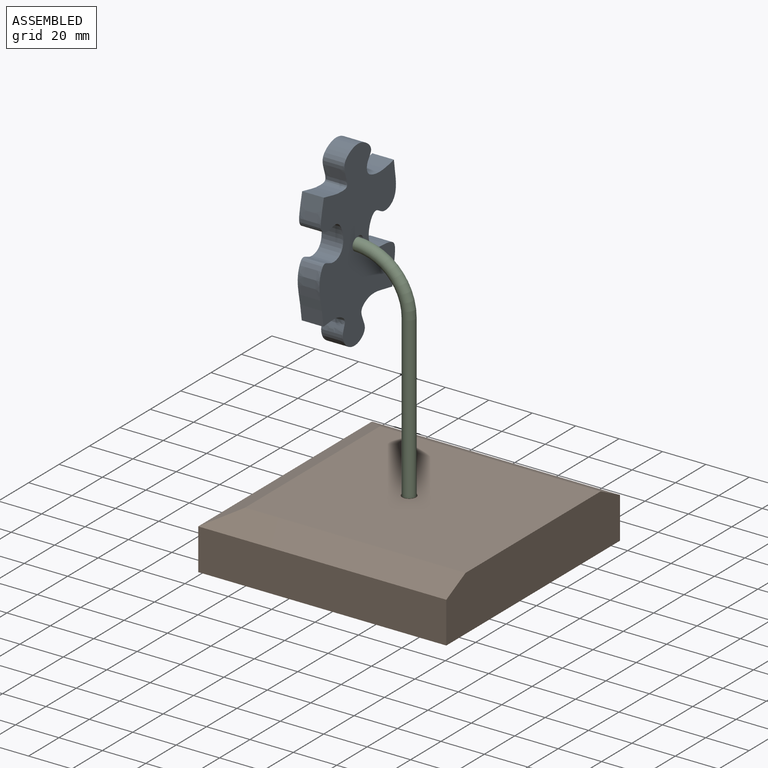
[diagram: assembled view]
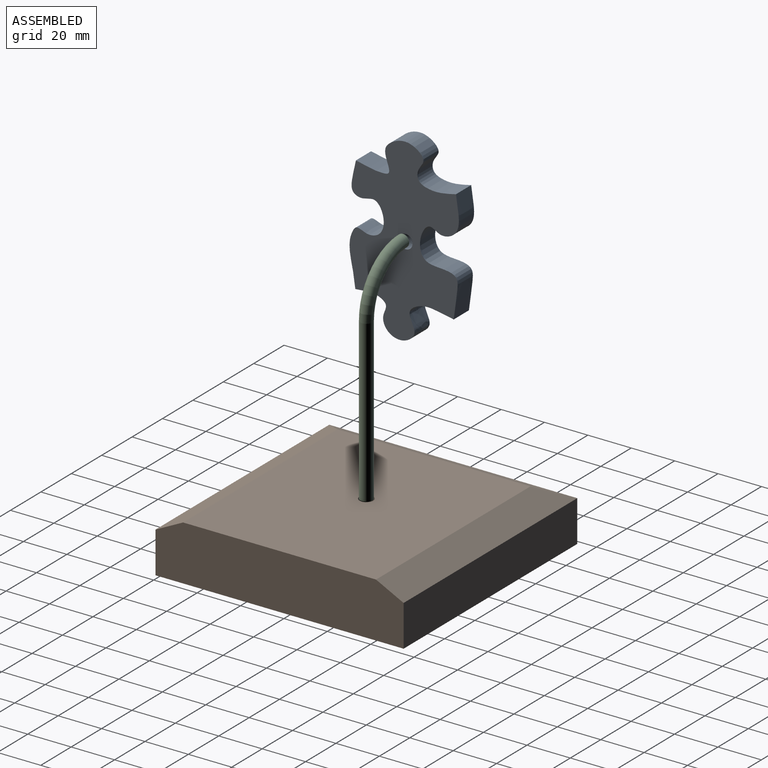
[diagram: assembled view, second angle]
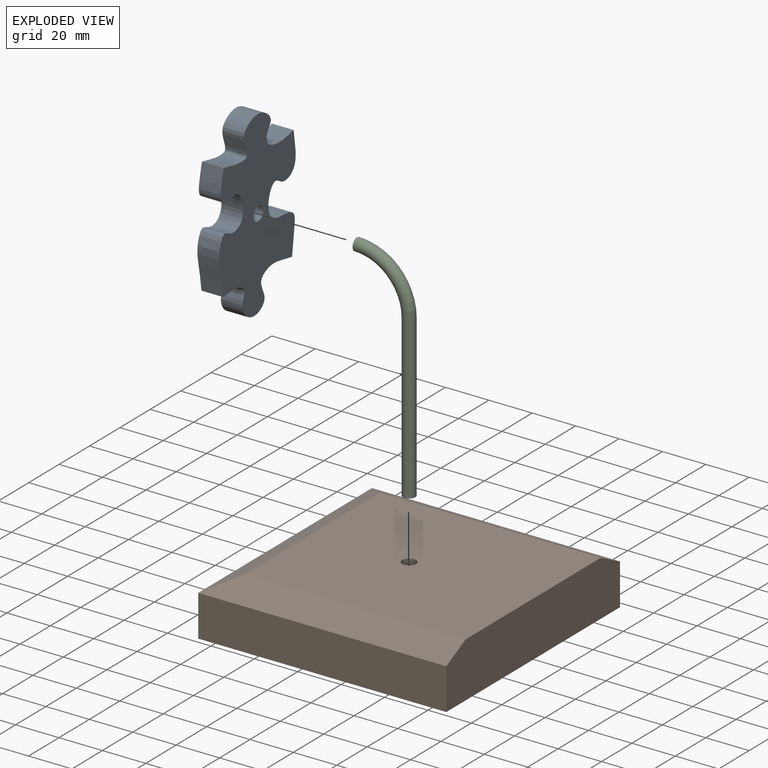
[diagram: exploded view]
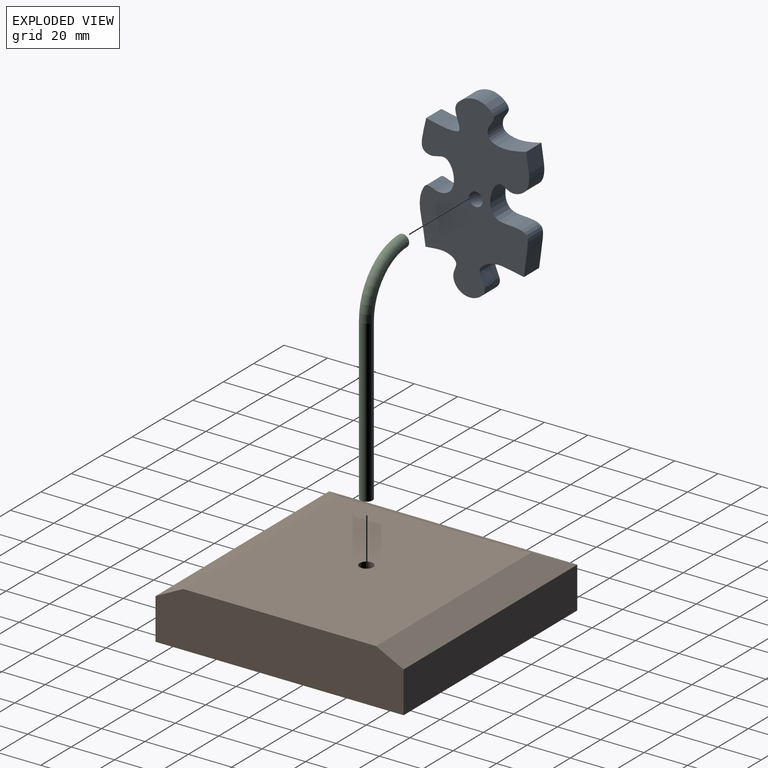
[diagram: exploded view, second angle]
ASSEMBLY  parts=3 mates=2
PART A: 8 faces, bbox 51.1x10x83.8 mm
  f0: extruded ~52.42x17.94mm, area 792mm2, adj f1,f3,f4,f5
  f1: extruded ~45.33x16.98mm, area 717.8mm2, adj f0,f2,f4,f5
  f2: extruded ~53.65x15.73mm, area 781.5mm2, adj f1,f3,f4,f5
  f3: extruded ~46.09x17.08mm, area 739.3mm2, adj f0,f2,f4,f5
  f4: plane 83.81x51.13mm, normal (0,-1,0), area 2457.5mm2, adj f0,f1,f2,f3
  f5: plane 83.81x51.13mm, normal (0,1,0), area 2425.8mm2, adj f0,f1,f2,f3,f7
  f6: cone r=0mm half-angle=59deg, axis (0,1,0), area 36.9mm2, adj f7
  f7: cylinder r=3.17mm len=6.35mm, axis (0,1,0), area 101.3mm2, adj f5,f6
PART B: 11 faces, bbox 114.3x114.3x25.4 mm
  f0: plane 101.6x88.9mm, normal (0,0,-1), area 9000.6mm2, adj f4,f6,f8,f9,f10
  f1: plane 114.3x19.05mm, normal (0,-1,0), area 2177.4mm2, adj f2,f4,f5,f8
  f2: plane 114.3x19.05mm, normal (1,0,0), area 2177.4mm2, adj f1,f3,f5,f10
  f3: plane 114.3x19.05mm, normal (0,1,0), area 2177.4mm2, adj f2,f4,f5,f9
  f4: plane 114.3x25.4mm, normal (-1,0,0), area 2822.6mm2, adj f0,f1,f3,f5,f8,f9
  f5: plane 114.3x114.3mm, normal (0,0,1), area 13064.5mm2, adj f1,f2,f3,f4
  f6: cylinder r=3.17mm len=12.7mm, axis (0,0,-1), area 253.4mm2, adj f0,f7
  f7: plane 6.35x6.35mm, normal (0,0,-1), area 31.7mm2, adj f6
  f8: plane 114.3x12.7mm, normal (0,-0.45,-0.89), area 1532.8mm2, adj f0,f1,f4,f10
  f9: plane 114.3x12.7mm, normal (0,0.45,-0.89), area 1532.8mm2, adj f0,f3,f4,f10
  f10: plane 114.3x12.7mm, normal (0.45,0,-0.89), area 1442.6mm2, adj f0,f2,f8,f9
PART C: 4 faces, bbox 103.3x5.7x29.2 mm
  f0: plane 5.67x5.67mm, normal (1,0,0), area 25.3mm2, adj f2
  f1: plane 5.67x5.67mm, normal (0,0,-1), area 25.3mm2, adj f3
  f2: cylinder r=2.84mm len=74.11mm, axis (-1,0,0), area 1320.6mm2, adj f0,f3
  f3: torus R=24.1mm, axis (0,-1,0), area 674.4mm2, adj f1,f2
PLACE A rot(axis=(0,0,-1),90deg) t=(-15.33,14.88,38.91)mm
PLACE B rot(axis=(0,1,0),180deg) t=(13.76,13.67,-59.23)mm
PLACE C rot(axis=(0,1,0),90deg) t=(-10.33,13.67,14.88)mm
MATE revolute C.f2 <-> B.f6  axis (0,0,-1) through (13.76,13.67,-59.23)mm
MATE revolute C.f1 <-> A.f5  axis (-1,0,0) through (-10.33,13.67,38.97)mm
